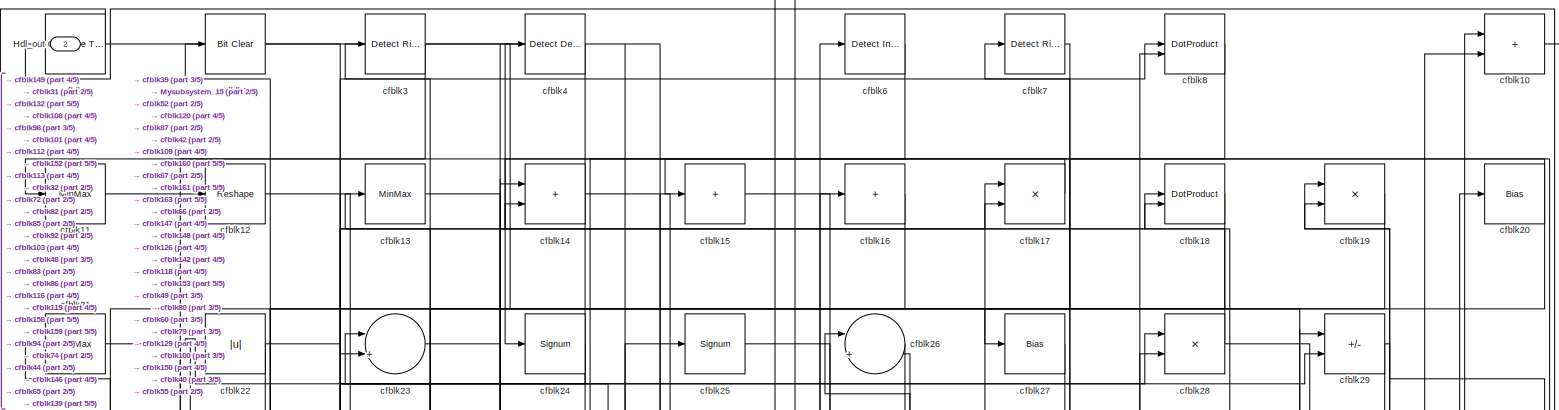
[diagram: root canvas - part 1/5, full width, top band]
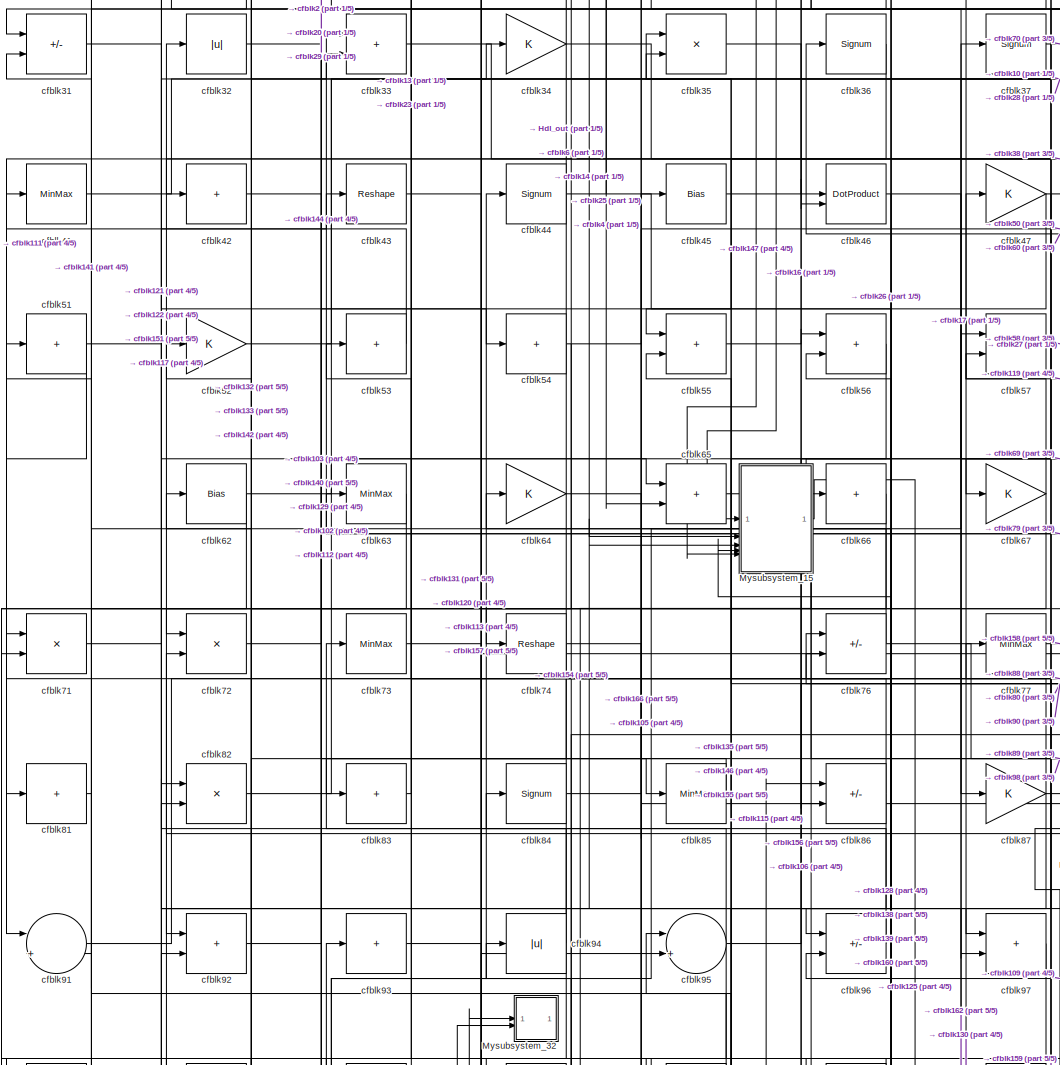
[diagram: root canvas - part 2/5, central region]
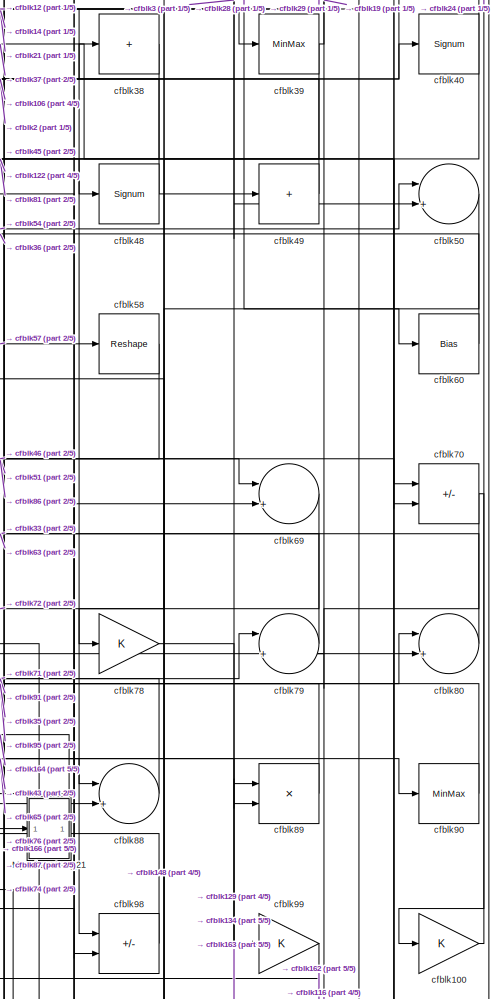
[diagram: root canvas - part 3/5, middle right region]
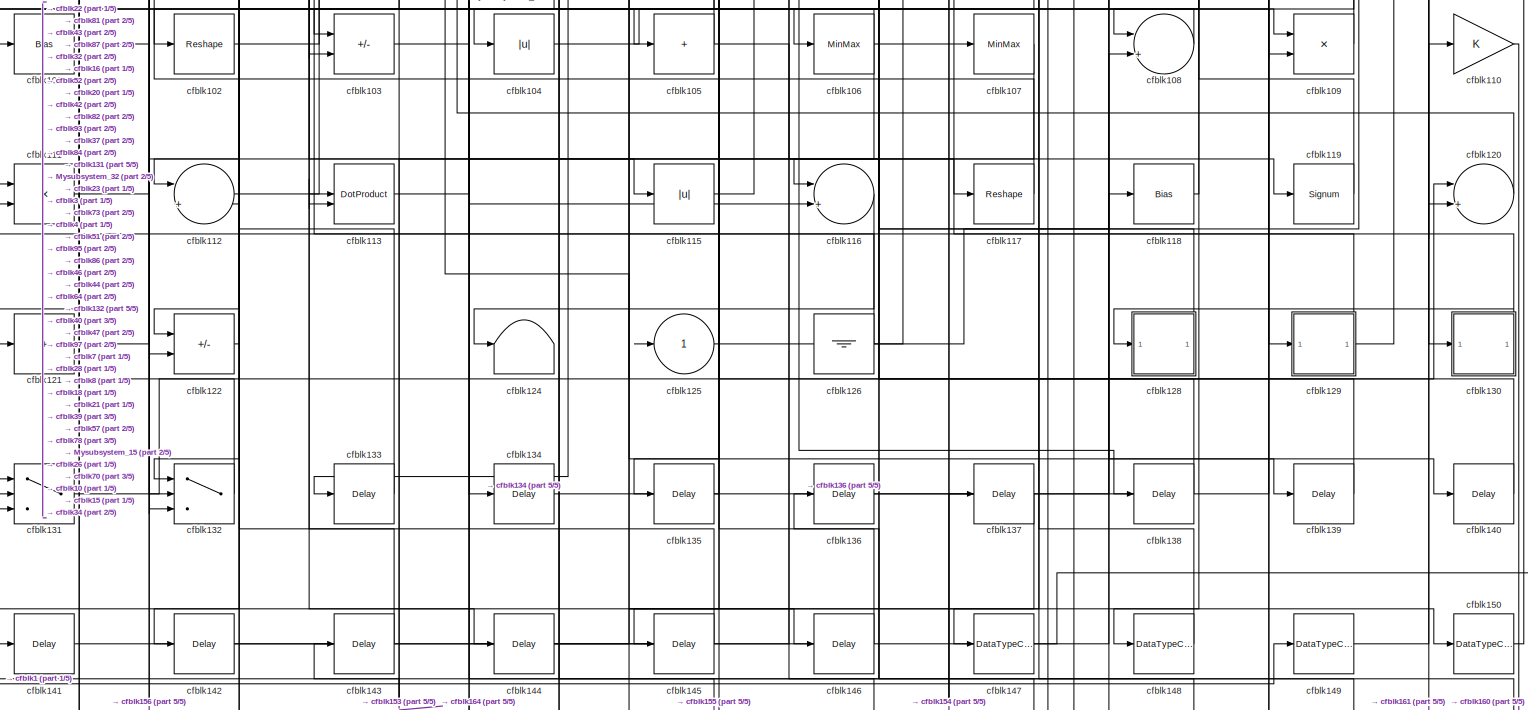
[diagram: root canvas - part 4/5, full width, bottom band]
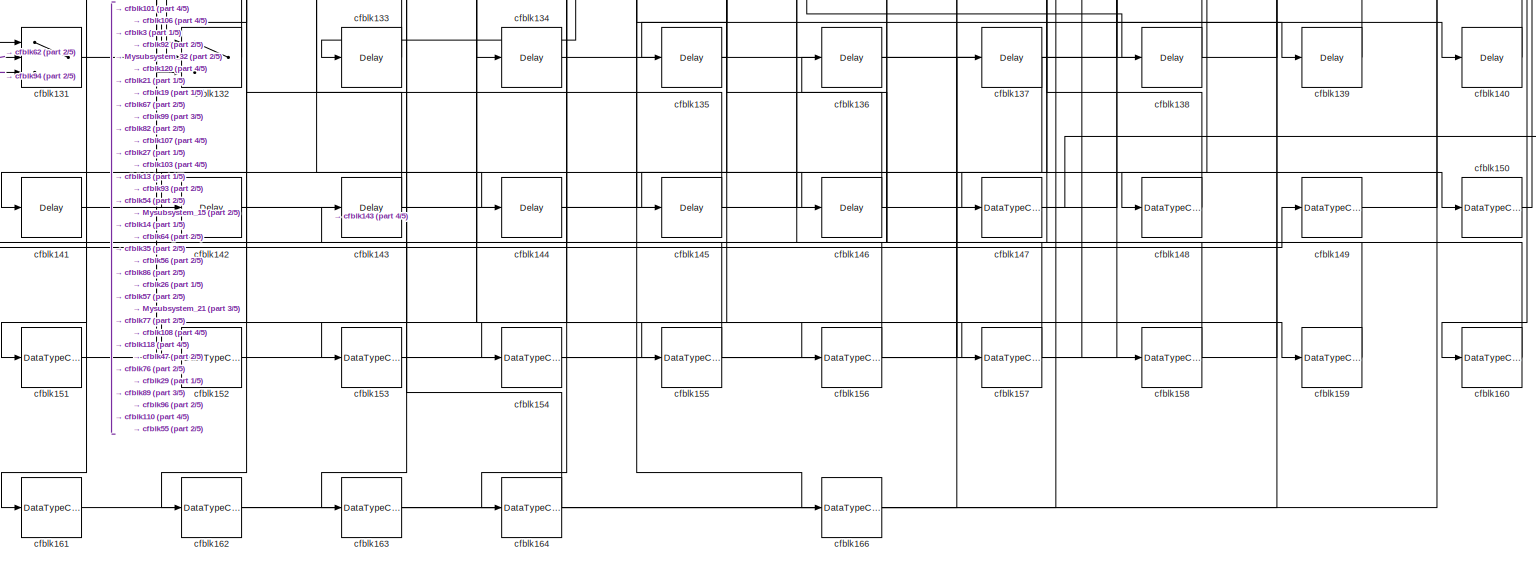
[diagram: root canvas - part 5/5, full width, bottom band]
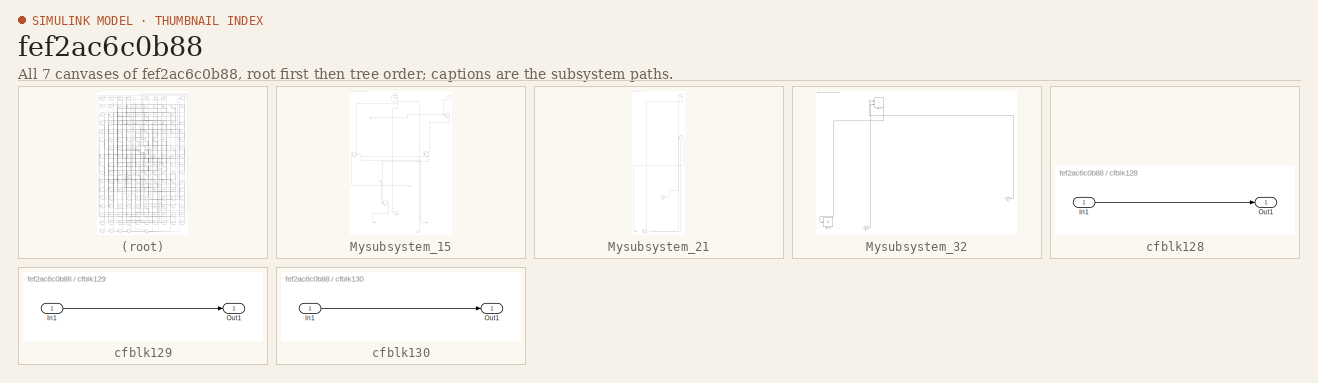
[diagram: thumbnail index - all 7 canvases of the model, root first then tree order]
MODEL slx_fef2ac6c0b88
KIND model
CONFIG AbsTol = auto
CONFIG EnableMultiTasking = off
CONFIG FixedStep = auto
CONFIG MaxStep = auto
CONFIG MinStep = auto
CONFIG RelTol = 1e-3
CONFIG SampleTimeConstraint = Unconstrained
CONFIG SolverName = VariableStepAuto
CONFIG StartTime = 0.0
CONFIG StopTime = 10.0
BLOCK [Outport] Hdl_out
  OutDataTypeStr = uint8
  Port = 2
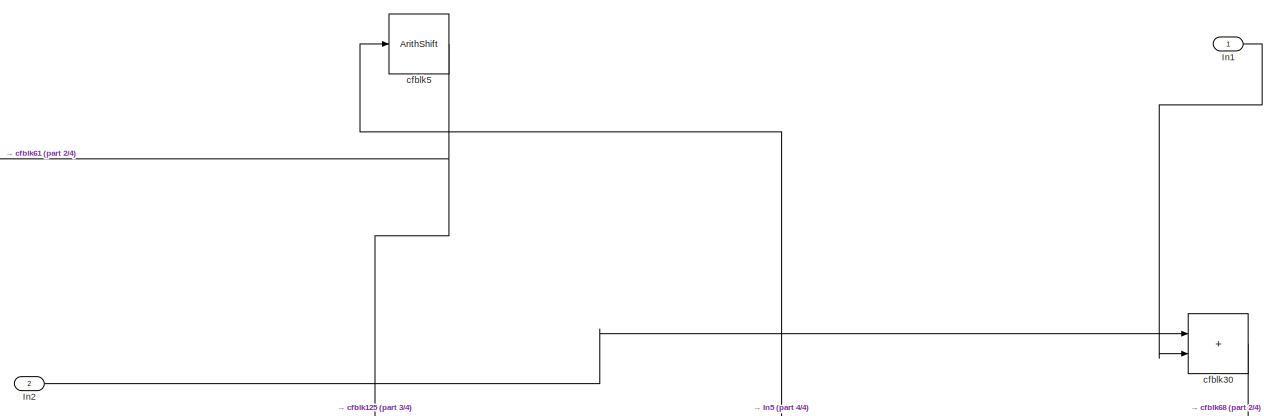
[diagram: Mysubsystem_15 - part 1/4, full width, top band]
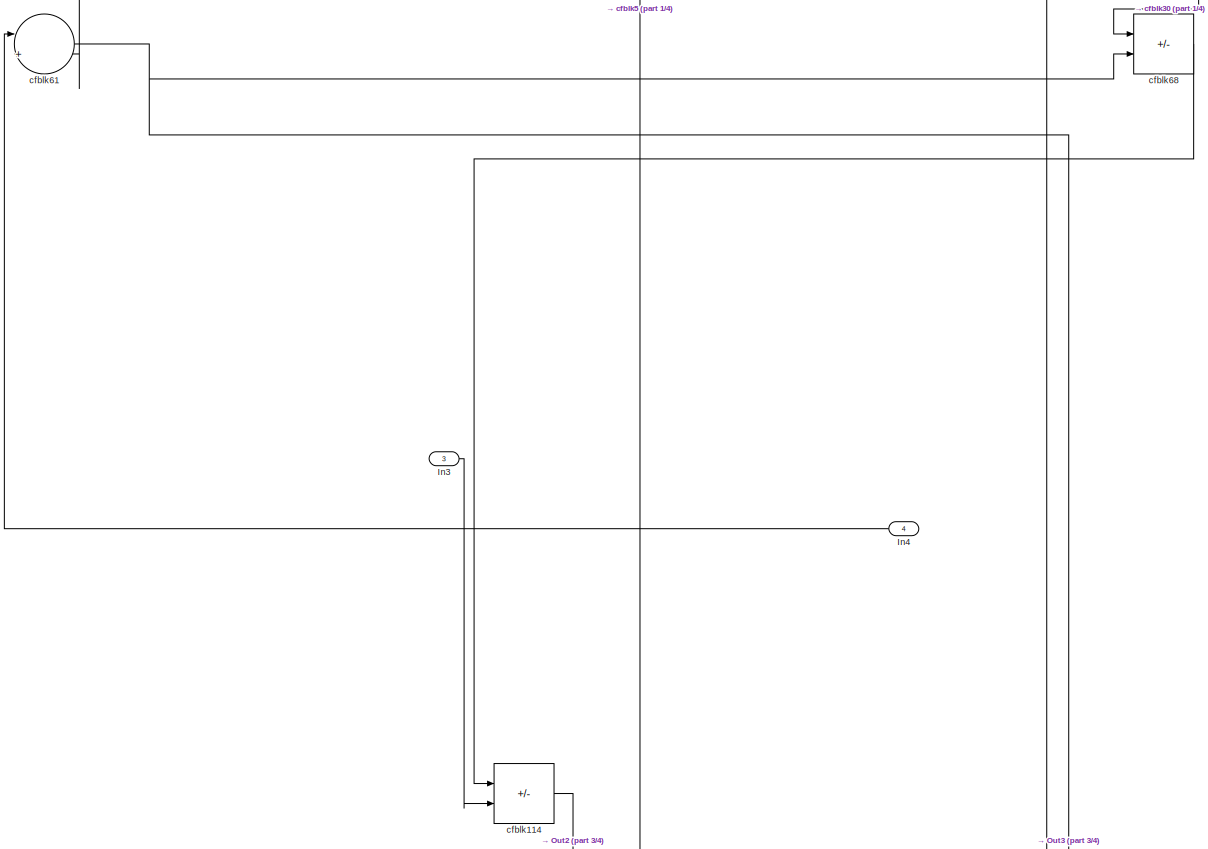
[diagram: Mysubsystem_15 - part 2/4, full width, middle band]
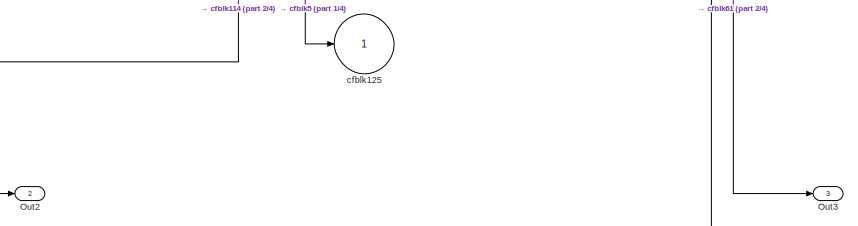
[diagram: Mysubsystem_15 - part 3/4, bottom center region]
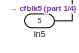
[diagram: Mysubsystem_15 - part 4/4, bottom center region]
BLOCK [SubSystem] Mysubsystem_15
  RTWFcnName = Mysubsystem_15
  RTWFcnNameOpts = User specified
  RTWFileNameOpts = Use function name
  RTWSystemCode = Reusable function
  TreatAsAtomicUnit = on
BLOCK [Inport] Mysubsystem_15/In1
BLOCK [Inport] Mysubsystem_15/In2
  Port = 2
BLOCK [Inport] Mysubsystem_15/In3
  Port = 3
BLOCK [Inport] Mysubsystem_15/In4
  Port = 4
BLOCK [Inport] Mysubsystem_15/In5
  Port = 5
BLOCK [Outport] Mysubsystem_15/Out2
  Port = 2
BLOCK [Outport] Mysubsystem_15/Out3
  Port = 3
BLOCK [Sum] Mysubsystem_15/cfblk114
  IconShape = rectangular
  Inputs = +-
BLOCK [Outport] Mysubsystem_15/cfblk125
  VectorParamsAs1DForOutWhenUnconnected = off
BLOCK [Sum] Mysubsystem_15/cfblk30
  IconShape = rectangular
BLOCK [ArithShift] Mysubsystem_15/cfblk5
  BitShiftNumber = 8
  InputPortMap = u0
BLOCK [Sum] Mysubsystem_15/cfblk61
  Inputs = |++
BLOCK [Sum] Mysubsystem_15/cfblk68
  IconShape = rectangular
  Inputs = +-
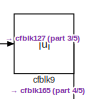
[diagram: Mysubsystem_21 - part 1/5, top right region]
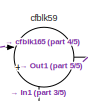
[diagram: Mysubsystem_21 - part 2/5, top right region]
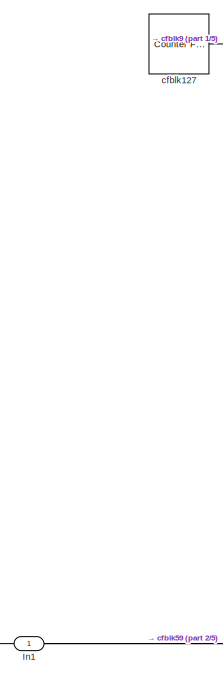
[diagram: Mysubsystem_21 - part 3/5, bottom center region]
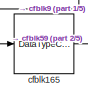
[diagram: Mysubsystem_21 - part 4/5, bottom left region]
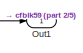
[diagram: Mysubsystem_21 - part 5/5, bottom left region]
BLOCK [SubSystem] Mysubsystem_21
  RTWFcnName = Mysubsystem_21
  RTWFcnNameOpts = User specified
  RTWFileNameOpts = Use function name
  RTWSystemCode = Reusable function
  TreatAsAtomicUnit = on
BLOCK [Inport] Mysubsystem_21/In1
BLOCK [Outport] Mysubsystem_21/Out1
BLOCK [Reference] Mysubsystem_21/cfblk127  REF=hdlsllib/Sources/Counter
Free-Running
  SourceBlock = hdlsllib/Sources/Counter\nFree-Running
  SourceType = Counter Free-Running
BLOCK [DataTypeConversion] Mysubsystem_21/cfblk165
  OutDataTypeStr = uint8
  RndMeth = Floor
  SaturateOnIntegerOverflow = off
BLOCK [Sum] Mysubsystem_21/cfblk59
  Inputs = |++
BLOCK [Abs] Mysubsystem_21/cfblk9
  SaturateOnIntegerOverflow = off
BLOCK [SubSystem] Mysubsystem_32
  RTWFcnName = Mysubsystem_32
  RTWFcnNameOpts = User specified
  RTWFileNameOpts = Use function name
  RTWSystemCode = Reusable function
  TreatAsAtomicUnit = on
BLOCK [Inport] Mysubsystem_32/In1
BLOCK [Inport] Mysubsystem_32/In2
  Port = 2
BLOCK [Display] Mysubsystem_32/cfblk123
  Decimation = 1
BLOCK [Sum] Mysubsystem_32/cfblk75
  IconShape = rectangular
BLOCK [Reference] cfblk1  REF=hdlsllib/Logic and Bit
Operations/Compare
To Zero
  SourceBlock = hdlsllib/Logic and Bit\nOperations/Compare\nTo Zero
  SourceType = Compare To Zero
BLOCK [Sum] cfblk10
  IconShape = rectangular
  OutDataTypeStr = uint8
BLOCK [Gain] cfblk100
  OutDataTypeStr = uint8
BLOCK [Bias] cfblk101
  Bias = 0.0
  SaturateOnIntegerOverflow = off
BLOCK [Reshape] cfblk102
BLOCK [Sum] cfblk103
  IconShape = rectangular
  Inputs = +-
  OutDataTypeStr = uint8
BLOCK [Abs] cfblk104
  OutDataTypeStr = uint8
  SaturateOnIntegerOverflow = off
BLOCK [Sum] cfblk105
  IconShape = rectangular
  Inputs = +
  OutDataTypeStr = uint8
BLOCK [MinMax] cfblk106
  OutDataTypeStr = uint8
BLOCK [MinMax] cfblk107
  OutDataTypeStr = uint8
BLOCK [Sum] cfblk108
  Inputs = |++
  OutDataTypeStr = uint8
BLOCK [Product] cfblk109
  Inputs = */
  OutDataTypeStr = uint8
  RndMeth = Zero
  SaturateOnIntegerOverflow = on
BLOCK [MinMax] cfblk11
  OutDataTypeStr = uint8
BLOCK [Gain] cfblk110
  OutDataTypeStr = uint8
BLOCK [Product] cfblk111
  Inputs = */
  OutDataTypeStr = uint8
  RndMeth = Zero
  SaturateOnIntegerOverflow = on
BLOCK [Sum] cfblk112
  Inputs = |++
  OutDataTypeStr = uint8
BLOCK [DotProduct] cfblk113
  OutDataTypeStr = uint8
BLOCK [Abs] cfblk115
  OutDataTypeStr = uint8
  SaturateOnIntegerOverflow = off
BLOCK [Sum] cfblk116
  Inputs = |++
  OutDataTypeStr = uint8
BLOCK [Reshape] cfblk117
BLOCK [Bias] cfblk118
  Bias = 0.0
  SaturateOnIntegerOverflow = off
BLOCK [Signum] cfblk119
BLOCK [Reshape] cfblk12
BLOCK [Sum] cfblk120
  Inputs = |++
  OutDataTypeStr = uint8
BLOCK [Sum] cfblk121
  IconShape = rectangular
  Inputs = +
  OutDataTypeStr = uint8
BLOCK [Sum] cfblk122
  IconShape = rectangular
  Inputs = +-
  OutDataTypeStr = uint8
BLOCK [Terminator] cfblk124
BLOCK [Outport] cfblk125
  OutDataTypeStr = uint8
  VectorParamsAs1DForOutWhenUnconnected = off
BLOCK [Ground] cfblk126
BLOCK [SubSystem] cfblk128
  LibrarySourceBlock = hdlsllib/Ports &\nSubsystems/Subsystem
BLOCK [Inport] cfblk128/In1
BLOCK [Outport] cfblk128/Out1
BLOCK [SubSystem] cfblk129
  LibrarySourceBlock = hdlsllib/Ports &\nSubsystems/Subsystem
BLOCK [Inport] cfblk129/In1
BLOCK [Outport] cfblk129/Out1
BLOCK [MinMax] cfblk13
  OutDataTypeStr = uint8
BLOCK [SubSystem] cfblk130
  LibrarySourceBlock = hdlsllib/Ports &\nSubsystems/Subsystem
BLOCK [Inport] cfblk130/In1
BLOCK [Outport] cfblk130/Out1
BLOCK [Switch] cfblk131
  InputSameDT = off
  OutDataTypeStr = uint8
  SaturateOnIntegerOverflow = off
BLOCK [Switch] cfblk132
  InputSameDT = off
  OutDataTypeStr = uint8
  SaturateOnIntegerOverflow = off
BLOCK [Delay] cfblk133
  InputPortMap = u0
  SampleTime = 1
BLOCK [Delay] cfblk134
  InputPortMap = u0
  SampleTime = 1
BLOCK [Delay] cfblk135
  InputPortMap = u0
  SampleTime = 1
BLOCK [Delay] cfblk136
  InputPortMap = u0
  SampleTime = 1
BLOCK [Delay] cfblk137
  InputPortMap = u0
  SampleTime = 1
BLOCK [Delay] cfblk138
  InputPortMap = u0
  SampleTime = 1
BLOCK [Delay] cfblk139
  InputPortMap = u0
  SampleTime = 1
BLOCK [Sum] cfblk14
  IconShape = rectangular
  OutDataTypeStr = uint8
BLOCK [Delay] cfblk140
  InputPortMap = u0
  SampleTime = 1
BLOCK [Delay] cfblk141
  InputPortMap = u0
  SampleTime = 1
BLOCK [Delay] cfblk142
  InputPortMap = u0
  SampleTime = 1
BLOCK [Delay] cfblk143
  InputPortMap = u0
  SampleTime = 1
BLOCK [Delay] cfblk144
  InputPortMap = u0
  SampleTime = 1
BLOCK [Delay] cfblk145
  InputPortMap = u0
  SampleTime = 1
BLOCK [Delay] cfblk146
  InputPortMap = u0
  SampleTime = 1
BLOCK [DataTypeConversion] cfblk147
  OutDataTypeStr = uint8
  RndMeth = Floor
  SaturateOnIntegerOverflow = off
BLOCK [DataTypeConversion] cfblk148
  OutDataTypeStr = uint8
  RndMeth = Floor
  SaturateOnIntegerOverflow = off
BLOCK [DataTypeConversion] cfblk149
  OutDataTypeStr = uint8
  RndMeth = Floor
  SaturateOnIntegerOverflow = off
BLOCK [Sum] cfblk15
  IconShape = rectangular
  Inputs = +
  OutDataTypeStr = uint8
BLOCK [DataTypeConversion] cfblk150
  OutDataTypeStr = uint8
  RndMeth = Floor
  SaturateOnIntegerOverflow = off
BLOCK [DataTypeConversion] cfblk151
  OutDataTypeStr = uint8
  RndMeth = Floor
  SaturateOnIntegerOverflow = off
BLOCK [DataTypeConversion] cfblk152
  OutDataTypeStr = uint8
  RndMeth = Floor
  SaturateOnIntegerOverflow = off
BLOCK [DataTypeConversion] cfblk153
  OutDataTypeStr = uint8
  RndMeth = Floor
  SaturateOnIntegerOverflow = off
BLOCK [DataTypeConversion] cfblk154
  OutDataTypeStr = uint8
  RndMeth = Floor
  SaturateOnIntegerOverflow = off
BLOCK [DataTypeConversion] cfblk155
  OutDataTypeStr = uint8
  RndMeth = Floor
  SaturateOnIntegerOverflow = off
BLOCK [DataTypeConversion] cfblk156
  OutDataTypeStr = uint8
  RndMeth = Floor
  SaturateOnIntegerOverflow = off
BLOCK [DataTypeConversion] cfblk157
  OutDataTypeStr = uint8
  RndMeth = Floor
  SaturateOnIntegerOverflow = off
BLOCK [DataTypeConversion] cfblk158
  OutDataTypeStr = uint8
  RndMeth = Floor
  SaturateOnIntegerOverflow = off
BLOCK [DataTypeConversion] cfblk159
  OutDataTypeStr = uint8
  RndMeth = Floor
  SaturateOnIntegerOverflow = off
BLOCK [Sum] cfblk16
  IconShape = rectangular
  Inputs = +
  OutDataTypeStr = uint8
BLOCK [DataTypeConversion] cfblk160
  OutDataTypeStr = uint8
  RndMeth = Floor
  SaturateOnIntegerOverflow = off
BLOCK [DataTypeConversion] cfblk161
  OutDataTypeStr = uint8
  RndMeth = Floor
  SaturateOnIntegerOverflow = off
BLOCK [DataTypeConversion] cfblk162
  OutDataTypeStr = uint8
  RndMeth = Floor
  SaturateOnIntegerOverflow = off
BLOCK [DataTypeConversion] cfblk163
  OutDataTypeStr = uint8
  RndMeth = Floor
  SaturateOnIntegerOverflow = off
BLOCK [DataTypeConversion] cfblk164
  OutDataTypeStr = uint8
  RndMeth = Floor
  SaturateOnIntegerOverflow = off
BLOCK [DataTypeConversion] cfblk166
  OutDataTypeStr = uint8
  RndMeth = Floor
  SaturateOnIntegerOverflow = off
BLOCK [Product] cfblk17
  Inputs = */
  OutDataTypeStr = uint8
  RndMeth = Zero
  SaturateOnIntegerOverflow = on
BLOCK [DotProduct] cfblk18
  OutDataTypeStr = uint8
BLOCK [Product] cfblk19
  Inputs = */
  OutDataTypeStr = uint8
  RndMeth = Zero
  SaturateOnIntegerOverflow = on
BLOCK [Reference] cfblk2  REF=simulink/Logic and Bit
Operations/Bit Clear
  LibrarySourceBlock = hdlsllib/Logic and Bit\nOperations/Bit Clear
  SourceBlock = simulink/Logic and Bit\nOperations/Bit Clear
  SourceType = Bit Clear
BLOCK [Bias] cfblk20
  Bias = 0.0
  SaturateOnIntegerOverflow = off
BLOCK [MinMax] cfblk21
  OutDataTypeStr = uint8
BLOCK [Abs] cfblk22
  OutDataTypeStr = uint8
  SaturateOnIntegerOverflow = off
BLOCK [Sum] cfblk23
  Inputs = |++
  OutDataTypeStr = uint8
BLOCK [Signum] cfblk24
BLOCK [Signum] cfblk25
BLOCK [Sum] cfblk26
  Inputs = |++
  OutDataTypeStr = uint8
BLOCK [Bias] cfblk27
  Bias = 0.0
  SaturateOnIntegerOverflow = off
BLOCK [Product] cfblk28
  Inputs = */
  OutDataTypeStr = uint8
  RndMeth = Zero
  SaturateOnIntegerOverflow = on
BLOCK [Sum] cfblk29
  IconShape = rectangular
  Inputs = +-
  OutDataTypeStr = uint8
BLOCK [Reference] cfblk3  REF=hdlsllib/Logic and Bit
Operations/Detect Rise
Positive
  SourceBlock = hdlsllib/Logic and Bit\nOperations/Detect Rise\nPositive
  SourceType = Detect Rise Positive
BLOCK [Sum] cfblk31
  IconShape = rectangular
  Inputs = +-
  OutDataTypeStr = uint8
BLOCK [Abs] cfblk32
  OutDataTypeStr = uint8
  SaturateOnIntegerOverflow = off
BLOCK [Sum] cfblk33
  IconShape = rectangular
  OutDataTypeStr = uint8
BLOCK [Gain] cfblk34
  OutDataTypeStr = uint8
BLOCK [Product] cfblk35
  Inputs = */
  OutDataTypeStr = uint8
  RndMeth = Zero
  SaturateOnIntegerOverflow = on
BLOCK [Signum] cfblk36
BLOCK [Signum] cfblk37
BLOCK [Sum] cfblk38
  IconShape = rectangular
  Inputs = +
  OutDataTypeStr = uint8
BLOCK [MinMax] cfblk39
  OutDataTypeStr = uint8
BLOCK [Reference] cfblk4  REF=simulink/Logic and Bit
Operations/Detect
Decrease
  LibrarySourceBlock = hdlsllib/Logic and Bit\nOperations/Detect\nDecrease
  SourceBlock = simulink/Logic and Bit\nOperations/Detect\nDecrease
  SourceType = Detect Decrease
BLOCK [Signum] cfblk40
BLOCK [MinMax] cfblk41
  OutDataTypeStr = uint8
BLOCK [Sum] cfblk42
  IconShape = rectangular
  Inputs = +
  OutDataTypeStr = uint8
BLOCK [Reshape] cfblk43
BLOCK [Signum] cfblk44
BLOCK [Bias] cfblk45
  Bias = 0.0
  SaturateOnIntegerOverflow = off
BLOCK [DotProduct] cfblk46
  OutDataTypeStr = uint8
BLOCK [Gain] cfblk47
  OutDataTypeStr = uint8
BLOCK [Signum] cfblk48
BLOCK [Sum] cfblk49
  IconShape = rectangular
  Inputs = +
  OutDataTypeStr = uint8
BLOCK [Sum] cfblk50
  Inputs = |++
  OutDataTypeStr = uint8
BLOCK [Sum] cfblk51
  IconShape = rectangular
  Inputs = +
  OutDataTypeStr = uint8
BLOCK [Gain] cfblk52
  OutDataTypeStr = uint8
BLOCK [Sum] cfblk53
  IconShape = rectangular
  Inputs = +
  OutDataTypeStr = uint8
BLOCK [Sum] cfblk54
  IconShape = rectangular
  Inputs = +
  OutDataTypeStr = uint8
BLOCK [Sum] cfblk55
  IconShape = rectangular
  OutDataTypeStr = uint8
BLOCK [Sum] cfblk56
  IconShape = rectangular
  OutDataTypeStr = uint8
BLOCK [Sum] cfblk57
  IconShape = rectangular
  OutDataTypeStr = uint8
BLOCK [Reshape] cfblk58
BLOCK [Reference] cfblk6  REF=simulink/Logic and Bit
Operations/Detect
Increase
  LibrarySourceBlock = hdlsllib/Logic and Bit\nOperations/Detect\nIncrease
  SourceBlock = simulink/Logic and Bit\nOperations/Detect\nIncrease
  SourceType = Detect Increase
BLOCK [Bias] cfblk60
  Bias = 0.0
  SaturateOnIntegerOverflow = off
BLOCK [Bias] cfblk62
  Bias = 0.0
  SaturateOnIntegerOverflow = off
BLOCK [MinMax] cfblk63
  OutDataTypeStr = uint8
BLOCK [Gain] cfblk64
  OutDataTypeStr = uint8
BLOCK [Sum] cfblk65
  IconShape = rectangular
  OutDataTypeStr = uint8
BLOCK [Sum] cfblk66
  IconShape = rectangular
  Inputs = +
  OutDataTypeStr = uint8
BLOCK [Gain] cfblk67
  OutDataTypeStr = uint8
BLOCK [Sum] cfblk69
  Inputs = |++
  OutDataTypeStr = uint8
BLOCK [Reference] cfblk7  REF=hdlsllib/Logic and Bit
Operations/Detect Rise
Positive
  SourceBlock = hdlsllib/Logic and Bit\nOperations/Detect Rise\nPositive
  SourceType = Detect Rise Positive
BLOCK [Sum] cfblk70
  IconShape = rectangular
  Inputs = +-
  OutDataTypeStr = uint8
BLOCK [Product] cfblk71
  Inputs = */
  OutDataTypeStr = uint8
  RndMeth = Zero
  SaturateOnIntegerOverflow = on
BLOCK [Product] cfblk72
  Inputs = */
  OutDataTypeStr = uint8
  RndMeth = Zero
  SaturateOnIntegerOverflow = on
BLOCK [MinMax] cfblk73
  OutDataTypeStr = uint8
BLOCK [Reshape] cfblk74
BLOCK [Sum] cfblk76
  IconShape = rectangular
  Inputs = +-
  OutDataTypeStr = uint8
BLOCK [MinMax] cfblk77
  OutDataTypeStr = uint8
BLOCK [Gain] cfblk78
  OutDataTypeStr = uint8
BLOCK [Sum] cfblk79
  Inputs = |++
  OutDataTypeStr = uint8
BLOCK [DotProduct] cfblk8
  OutDataTypeStr = uint8
BLOCK [Sum] cfblk80
  Inputs = |++
  OutDataTypeStr = uint8
BLOCK [Sum] cfblk81
  IconShape = rectangular
  Inputs = +
  OutDataTypeStr = uint8
BLOCK [Product] cfblk82
  Inputs = */
  OutDataTypeStr = uint8
  RndMeth = Zero
  SaturateOnIntegerOverflow = on
BLOCK [Sum] cfblk83
  IconShape = rectangular
  Inputs = +
  OutDataTypeStr = uint8
BLOCK [Signum] cfblk84
BLOCK [MinMax] cfblk85
  OutDataTypeStr = uint8
BLOCK [Sum] cfblk86
  IconShape = rectangular
  Inputs = +-
  OutDataTypeStr = uint8
BLOCK [Gain] cfblk87
  OutDataTypeStr = uint8
BLOCK [Sum] cfblk88
  Inputs = |++
  OutDataTypeStr = uint8
BLOCK [Product] cfblk89
  Inputs = */
  OutDataTypeStr = uint8
  RndMeth = Zero
  SaturateOnIntegerOverflow = on
BLOCK [MinMax] cfblk90
  OutDataTypeStr = uint8
BLOCK [Sum] cfblk91
  Inputs = |++
  OutDataTypeStr = uint8
BLOCK [Sum] cfblk92
  IconShape = rectangular
  OutDataTypeStr = uint8
BLOCK [Sum] cfblk93
  IconShape = rectangular
  Inputs = +
  OutDataTypeStr = uint8
BLOCK [Abs] cfblk94
  OutDataTypeStr = uint8
  SaturateOnIntegerOverflow = off
BLOCK [Sum] cfblk95
  Inputs = |++
  OutDataTypeStr = uint8
BLOCK [Sum] cfblk96
  IconShape = rectangular
  Inputs = +-
  OutDataTypeStr = uint8
BLOCK [Sum] cfblk97
  IconShape = rectangular
  OutDataTypeStr = uint8
BLOCK [Sum] cfblk98
  IconShape = rectangular
  Inputs = +-
  OutDataTypeStr = uint8
BLOCK [Gain] cfblk99
  OutDataTypeStr = uint8
LINE Mysubsystem_15/In1:1 -> Mysubsystem_15/cfblk30:2
LINE Mysubsystem_15/In2:1 -> Mysubsystem_15/cfblk30:1
LINE Mysubsystem_15/In3:1 -> Mysubsystem_15/cfblk114:2
LINE Mysubsystem_15/In4:1 -> Mysubsystem_15/cfblk61:1
LINE Mysubsystem_15/In5:1 -> Mysubsystem_15/cfblk5:1
LINE Mysubsystem_15/cfblk114:1 -> Mysubsystem_15/Out2:1
LINE Mysubsystem_15/cfblk30:1 -> Mysubsystem_15/cfblk68:1
NET Mysubsystem_15/cfblk5:1 -> Mysubsystem_15/cfblk125:1, Mysubsystem_15/cfblk61:2
NET Mysubsystem_15/cfblk61:1 -> Mysubsystem_15/Out3:1, Mysubsystem_15/cfblk68:2
LINE Mysubsystem_15/cfblk68:1 -> Mysubsystem_15/cfblk114:1
LINE Mysubsystem_15:1 -> cfblk125:1
LINE Mysubsystem_15:2 -> cfblk133:1
LINE Mysubsystem_15:3 -> cfblk138:1
LINE Mysubsystem_21/In1:1 -> Mysubsystem_21/cfblk59:2
LINE Mysubsystem_21/cfblk127:1 -> Mysubsystem_21/cfblk9:1
LINE Mysubsystem_21/cfblk165:1 -> Mysubsystem_21/cfblk59:1
LINE Mysubsystem_21/cfblk59:1 -> Mysubsystem_21/Out1:1
LINE Mysubsystem_21/cfblk9:1 -> Mysubsystem_21/cfblk165:1
LINE Mysubsystem_21:1 -> cfblk164:1
LINE Mysubsystem_32/In1:1 -> Mysubsystem_32/cfblk75:1
LINE Mysubsystem_32/In2:1 -> Mysubsystem_32/cfblk75:2
LINE Mysubsystem_32/cfblk75:1 -> Mysubsystem_32/cfblk123:1
LINE cfblk100:1 -> cfblk24:1
LINE cfblk101:1 -> cfblk156:1
LINE cfblk102:1 -> cfblk84:1
LINE cfblk103:1 -> cfblk134:1
LINE cfblk104:1 -> cfblk109:1
NET cfblk105:1 -> cfblk117:1, cfblk145:1, cfblk51:1
NET cfblk106:1 -> cfblk104:1, cfblk132:2, cfblk40:1
LINE cfblk107:1 -> cfblk153:1
LINE cfblk108:1 -> cfblk102:1
NET cfblk109:1 -> Mysubsystem_15:4, cfblk26:2
LINE cfblk10:1 -> Mysubsystem_15:1
LINE cfblk110:1 -> cfblk160:1
LINE cfblk111:1 -> cfblk43:1
LINE cfblk112:1 -> cfblk37:1
LINE cfblk113:1 -> cfblk95:2
LINE cfblk115:1 -> cfblk86:1
LINE cfblk116:1 -> cfblk124:1
LINE cfblk117:1 -> cfblk32:1
LINE cfblk118:1 -> cfblk18:1
LINE cfblk119:1 -> cfblk57:2
LINE cfblk11:1 -> cfblk12:1
LINE cfblk120:1 -> Mysubsystem_32:1
LINE cfblk121:1 -> cfblk82:2
LINE cfblk122:1 -> cfblk52:1
NET cfblk126:1 -> cfblk111:1, cfblk28:2
LINE cfblk128/In1:1 -> cfblk128/Out1:1
LINE cfblk128:1 -> cfblk64:1
LINE cfblk129/In1:1 -> cfblk129/Out1:1
NET cfblk129:1 -> cfblk10:2, cfblk93:1
NET cfblk12:1 -> cfblk23:2, cfblk48:1
LINE cfblk130/In1:1 -> cfblk130/Out1:1
NET cfblk130:1 -> cfblk128:1, cfblk47:1
NET cfblk131:1 -> Mysubsystem_32:2, cfblk120:1
LINE cfblk132:1 -> cfblk21:1
LINE cfblk133:1 -> cfblk82:1
LINE cfblk134:1 -> cfblk89:1
LINE cfblk135:1 -> cfblk35:2
LINE cfblk136:1 -> cfblk108:2
LINE cfblk137:1 -> cfblk151:1
LINE cfblk138:1 -> cfblk76:2
LINE cfblk139:1 -> cfblk96:2
LINE cfblk13:1 -> cfblk159:1
LINE cfblk140:1 -> cfblk55:2
LINE cfblk141:1 -> cfblk46:1
LINE cfblk142:1 -> cfblk8:2
LINE cfblk143:1 -> cfblk113:1
LINE cfblk144:1 -> cfblk150:1
LINE cfblk145:1 -> cfblk112:2
LINE cfblk146:1 -> cfblk95:1
LINE cfblk147:1 -> Mysubsystem_15:5
LINE cfblk148:1 -> cfblk7:1
LINE cfblk149:1 -> cfblk20:1
NET cfblk14:1 -> cfblk139:1, cfblk39:1
LINE cfblk150:1 -> cfblk1:1
LINE cfblk151:1 -> cfblk92:2
LINE cfblk152:1 -> cfblk137:1
LINE cfblk153:1 -> cfblk29:1
LINE cfblk154:1 -> cfblk107:1
NET cfblk155:1 -> cfblk118:1, cfblk131:1
LINE cfblk156:1 -> cfblk56:1
LINE cfblk157:1 -> cfblk56:2
NET cfblk158:1 -> cfblk136:1, cfblk14:1
LINE cfblk159:1 -> cfblk77:1
LINE cfblk15:1 -> cfblk120:2
NET cfblk160:1 -> cfblk26:1, cfblk94:1
LINE cfblk161:1 -> cfblk110:1
LINE cfblk162:1 -> cfblk57:1
LINE cfblk163:1 -> cfblk99:1
LINE cfblk164:1 -> cfblk143:1
LINE cfblk166:1 -> Mysubsystem_21:1
LINE cfblk16:1 -> cfblk112:1
LINE cfblk17:1 -> cfblk15:1
LINE cfblk18:1 -> cfblk103:1
LINE cfblk19:1 -> cfblk152:1
LINE cfblk1:1 -> cfblk149:1
NET cfblk20:1 -> cfblk113:2, cfblk11:1, cfblk31:1
NET cfblk21:1 -> cfblk108:1, cfblk98:2
NET cfblk22:1 -> cfblk101:1, cfblk8:1
NET cfblk23:1 -> cfblk119:1, cfblk18:2
LINE cfblk24:1 -> cfblk22:1
LINE cfblk25:1 -> cfblk87:1
LINE cfblk26:1 -> cfblk42:1
NET cfblk27:1 -> cfblk161:1, cfblk163:1, cfblk66:1
NET cfblk28:1 -> cfblk4:1, cfblk60:1
NET cfblk29:1 -> cfblk67:1, cfblk79:2
LINE cfblk2:1 -> cfblk85:1
LINE cfblk31:1 -> cfblk54:1
NET cfblk32:1 -> Mysubsystem_15:2, cfblk14:2
LINE cfblk33:1 -> cfblk88:1
LINE cfblk34:1 -> cfblk130:1
LINE cfblk35:1 -> cfblk46:2
LINE cfblk36:1 -> cfblk55:1
LINE cfblk37:1 -> cfblk70:1
LINE cfblk38:1 -> cfblk81:1
NET cfblk39:1 -> cfblk148:1, cfblk19:1
NET cfblk3:1 -> cfblk116:2, cfblk132:3, cfblk49:1, cfblk80:2
NET cfblk40:1 -> cfblk122:1, cfblk19:2
LINE cfblk41:1 -> cfblk33:2
LINE cfblk42:1 -> cfblk144:1
LINE cfblk43:1 -> cfblk89:2
NET cfblk44:1 -> cfblk106:1, cfblk25:1
LINE cfblk45:1 -> cfblk38:1
NET cfblk46:1 -> cfblk70:2, cfblk96:1
NET cfblk47:1 -> cfblk103:2, cfblk140:1, cfblk97:1
NET cfblk48:1 -> cfblk3:1, cfblk50:2
LINE cfblk49:1 -> cfblk2:1
NET cfblk4:1 -> cfblk146:1, cfblk65:2
LINE cfblk50:1 -> cfblk78:1
NET cfblk51:1 -> cfblk69:1, cfblk91:1, cfblk97:2
LINE cfblk52:1 -> cfblk6:1
LINE cfblk53:1 -> cfblk41:1
NET cfblk54:1 -> cfblk154:1, cfblk50:1
LINE cfblk55:1 -> cfblk16:1
LINE cfblk56:1 -> cfblk155:1
LINE cfblk57:1 -> cfblk58:1
LINE cfblk58:1 -> cfblk86:2
LINE cfblk60:1 -> cfblk36:1
NET cfblk62:1 -> cfblk131:2, cfblk65:1
LINE cfblk63:1 -> cfblk91:2
LINE cfblk64:1 -> cfblk166:1
LINE cfblk65:1 -> cfblk98:1
LINE cfblk66:1 -> cfblk71:2
NET cfblk67:1 -> cfblk132:1, cfblk17:1
LINE cfblk69:1 -> cfblk72:1
LINE cfblk6:1 -> cfblk74:1
NET cfblk70:1 -> cfblk100:1, cfblk116:1
LINE cfblk71:1 -> cfblk34:1
LINE cfblk72:1 -> cfblk17:2
NET cfblk73:1 -> cfblk105:1, cfblk109:2
NET cfblk74:1 -> cfblk88:2, cfblk92:1
NET cfblk76:1 -> cfblk31:2, cfblk90:1
LINE cfblk77:1 -> cfblk158:1
LINE cfblk78:1 -> cfblk129:1
LINE cfblk79:1 -> cfblk33:1
LINE cfblk7:1 -> cfblk147:1
LINE cfblk80:1 -> cfblk63:1
LINE cfblk81:1 -> cfblk121:1
NET cfblk82:1 -> cfblk10:1, cfblk115:1, cfblk28:1
LINE cfblk83:1 -> cfblk23:1
LINE cfblk84:1 -> cfblk45:1
LINE cfblk85:1 -> cfblk83:1
NET cfblk86:1 -> cfblk135:1, cfblk13:1
NET cfblk87:1 -> Mysubsystem_15:3, cfblk122:2, cfblk53:1, cfblk69:2
LINE cfblk88:1 -> cfblk71:1
LINE cfblk89:1 -> cfblk76:1
LINE cfblk8:1 -> cfblk27:1
LINE cfblk90:1 -> cfblk35:1
LINE cfblk91:1 -> cfblk79:1
LINE cfblk92:1 -> cfblk29:2
LINE cfblk93:1 -> cfblk157:1
NET cfblk94:1 -> Hdl_out:1, cfblk131:3, cfblk73:1
NET cfblk95:1 -> cfblk111:2, cfblk62:1, cfblk80:1
LINE cfblk96:1 -> cfblk44:1
NET cfblk97:1 -> cfblk141:1, cfblk142:1
LINE cfblk98:1 -> cfblk72:2
LINE cfblk99:1 -> cfblk162:1
note: NET lines group one-source signal fan-out (src -> all destinations, sorted); 1:1 wires keep LINE
